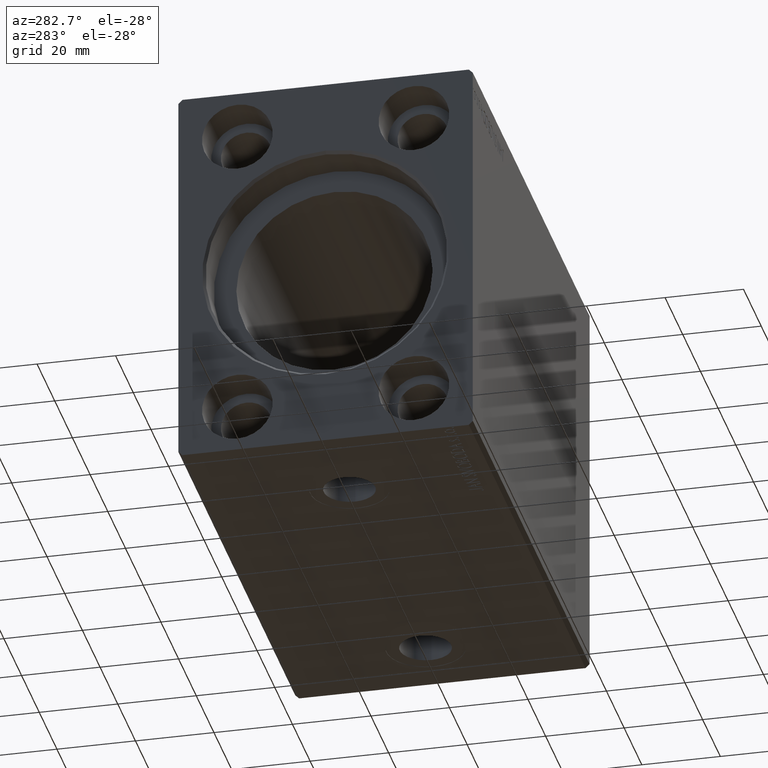
[diagram: clean part render]
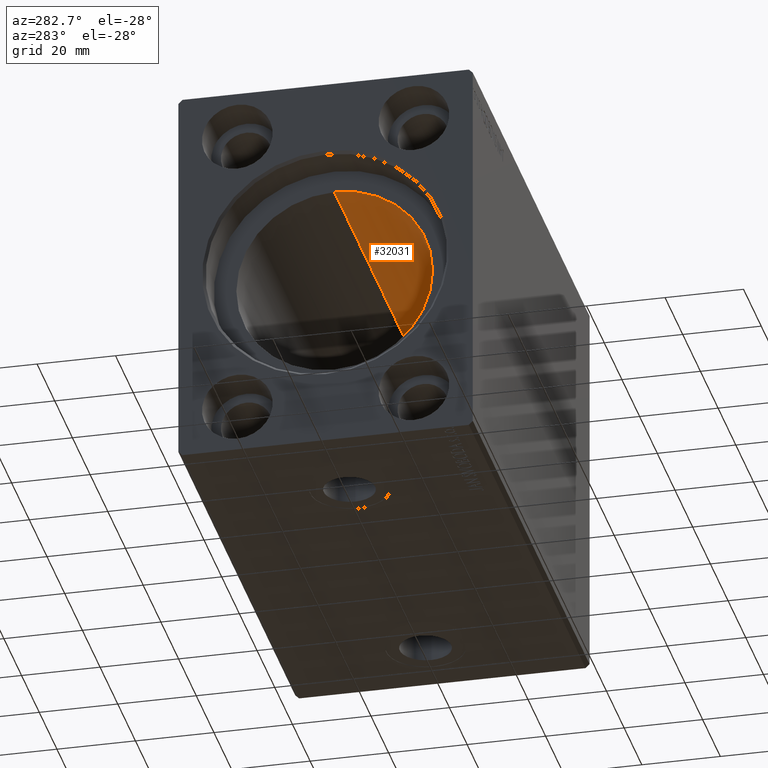
[diagram: same view with one face highlighted and labeled with its STEP entity id]
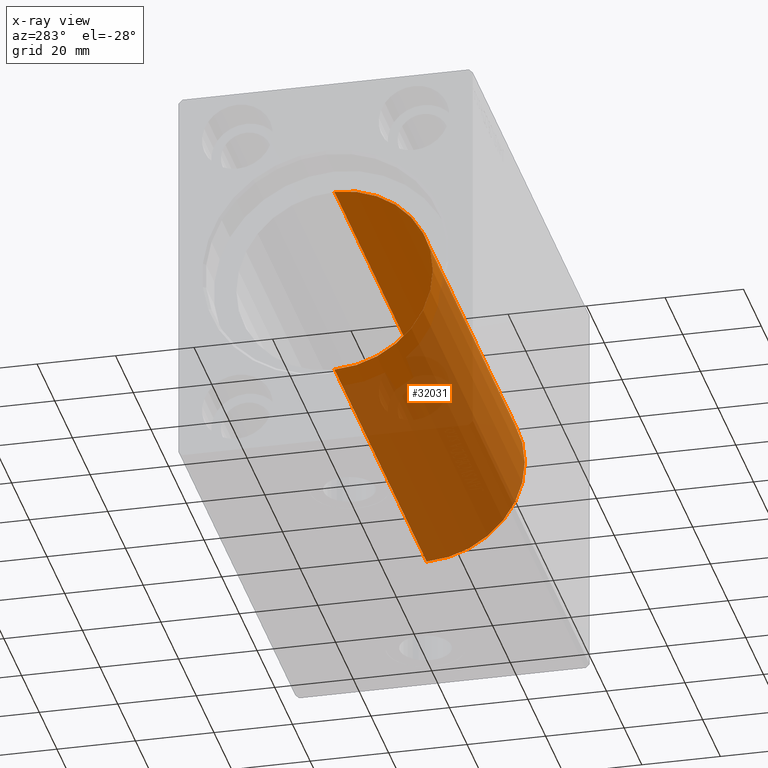
[diagram: x-ray of the same camera — body ghosted, the highlighted face saturated]
A machine part, auxiliary view. The second image highlights one B-rep face of the part: STEP entity #32031.
The next image is the same camera in x-ray: the body ghosted, the highlighted face saturated — about 72% of this face is hidden behind the body in this view.
In plain terms, the highlighted cylindrical surface (partial cylindrical patch) has radius 25 mm, axis along (-1, -0, -0).
Its self-contained STEP definition (entity closure, byte-faithful):
#664 = CARTESIAN_POINT ( 'NONE',  ( 114.2000000000000028, 0.000000000000000000, 25.00000000000000000 ) ) ;
#1910 = VERTEX_POINT ( 'NONE', #31543 ) ;
#3992 = CARTESIAN_POINT ( 'NONE',  ( 114.2000000000000028, 3.061616997868383043E-15, -25.00000000000000000 ) ) ;
#6036 = AXIS2_PLACEMENT_3D ( 'NONE', #17780, #40778, #15793 ) ;
#10014 = EDGE_LOOP ( 'NONE', ( #29120, #11202, #15376, #27594 ) ) ;
#11202 = ORIENTED_EDGE ( 'NONE', *, *, #34522, .T. ) ;
#12432 = DIRECTION ( 'NONE',  ( -1.000000000000000000, -0.000000000000000000, -0.000000000000000000 ) ) ;
#14193 = CARTESIAN_POINT ( 'NONE',  ( 114.2000000000000028, 0.000000000000000000, 0.000000000000000000 ) ) ;
#14220 = EDGE_CURVE ( 'NONE', #1910, #41727, #32042, .T. ) ;
#14455 = CARTESIAN_POINT ( 'NONE',  ( 9.999999999999994671, 0.000000000000000000, 25.00000000000000000 ) ) ;
#15376 = ORIENTED_EDGE ( 'NONE', *, *, #14220, .T. ) ;
#15793 = DIRECTION ( 'NONE',  ( 0.000000000000000000, 0.000000000000000000, 1.000000000000000000 ) ) ;
#15867 = VECTOR ( 'NONE', #12432, 1000.000000000000000 ) ;
#16215 = EDGE_CURVE ( 'NONE', #41356, #21820, #27288, .T. ) ;
#17780 = CARTESIAN_POINT ( 'NONE',  ( 114.2000000000000028, 0.000000000000000000, 0.000000000000000000 ) ) ;
#21820 = VERTEX_POINT ( 'NONE', #664 ) ;
#23751 = CARTESIAN_POINT ( 'NONE',  ( 9.999999999999994671, 0.000000000000000000, 0.000000000000000000 ) ) ;
#25871 = AXIS2_PLACEMENT_3D ( 'NONE', #23751, #30626, #36855 ) ;
#27288 = CIRCLE ( 'NONE', #6036, 25.00000000000000000 ) ;
#27594 = ORIENTED_EDGE ( 'NONE', *, *, #39553, .F. ) ;
#29120 = ORIENTED_EDGE ( 'NONE', *, *, #16215, .F. ) ;
#30534 = DIRECTION ( 'NONE',  ( -1.000000000000000000, -0.000000000000000000, -0.000000000000000000 ) ) ;
#30626 = DIRECTION ( 'NONE',  ( -1.000000000000000000, 0.000000000000000000, 0.000000000000000000 ) ) ;
#30970 = CYLINDRICAL_SURFACE ( 'NONE', #32279, 25.00000000000000000 ) ;
#31192 = DIRECTION ( 'NONE',  ( 0.000000000000000000, 0.000000000000000000, 1.000000000000000000 ) ) ;
#31543 = CARTESIAN_POINT ( 'NONE',  ( 9.999999999999994671, 3.061616997868383043E-15, -25.00000000000000000 ) ) ;
#32031 = ADVANCED_FACE ( 'NONE', ( #41065 ), #30970, .F. ) ;
#32042 = CIRCLE ( 'NONE', #25871, 25.00000000000000000 ) ;
#32279 = AXIS2_PLACEMENT_3D ( 'NONE', #14193, #30534, #31192 ) ;
#34522 = EDGE_CURVE ( 'NONE', #41356, #1910, #38439, .T. ) ;
#34863 = DIRECTION ( 'NONE',  ( -1.000000000000000000, -0.000000000000000000, -0.000000000000000000 ) ) ;
#35489 = LINE ( 'NONE', #41308, #37224 ) ;
#36855 = DIRECTION ( 'NONE',  ( 0.000000000000000000, 0.000000000000000000, 1.000000000000000000 ) ) ;
#37224 = VECTOR ( 'NONE', #34863, 1000.000000000000000 ) ;
#38439 = LINE ( 'NONE', #42076, #15867 ) ;
#39553 = EDGE_CURVE ( 'NONE', #21820, #41727, #35489, .T. ) ;
#40778 = DIRECTION ( 'NONE',  ( -1.000000000000000000, 0.000000000000000000, 0.000000000000000000 ) ) ;
#41065 = FACE_OUTER_BOUND ( 'NONE', #10014, .T. ) ;
#41308 = CARTESIAN_POINT ( 'NONE',  ( 114.2000000000000028, 0.000000000000000000, 25.00000000000000000 ) ) ;
#41356 = VERTEX_POINT ( 'NONE', #3992 ) ;
#41727 = VERTEX_POINT ( 'NONE', #14455 ) ;
#42076 = CARTESIAN_POINT ( 'NONE',  ( 114.2000000000000028, 3.061616997868383043E-15, -25.00000000000000000 ) ) ;